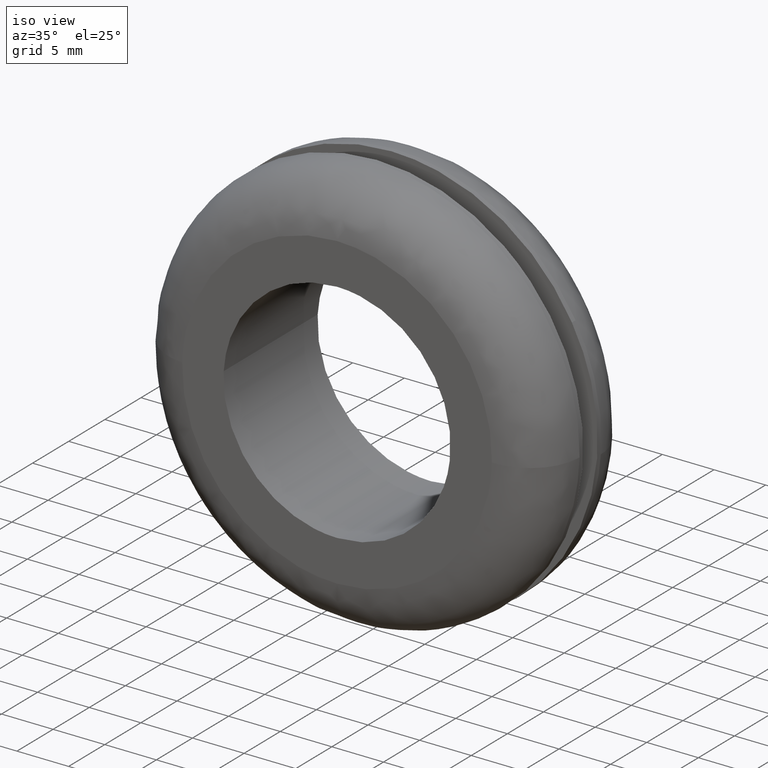
[diagram: clean part render]
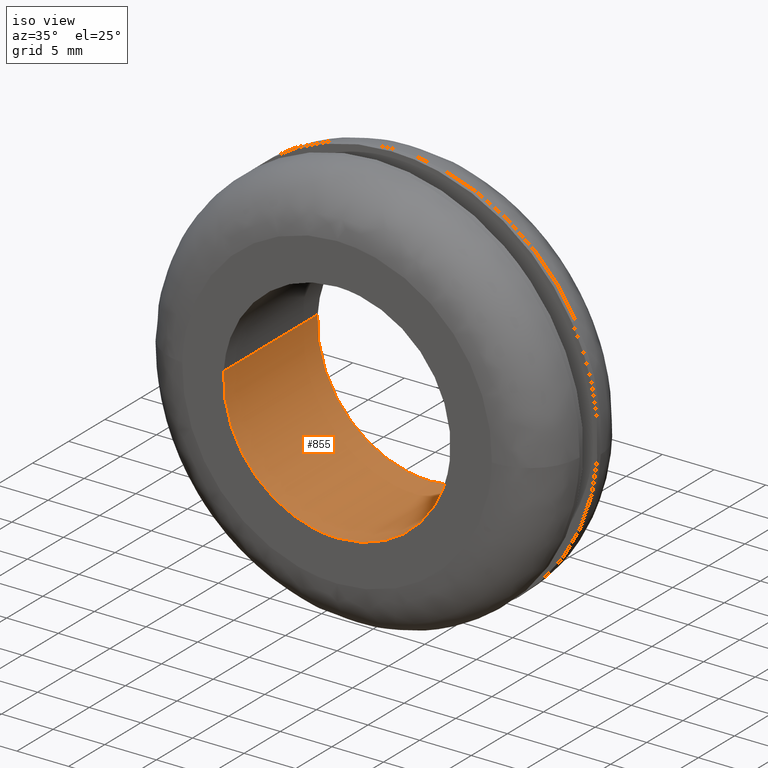
[diagram: same view with one face highlighted and labeled with its STEP entity id]
A machine part, iso view. The second image highlights one B-rep face of the part: STEP entity #855.
In plain terms, the highlighted face is a freeform B-spline surface patch.
Its self-contained STEP definition (entity closure, byte-faithful):
#688=CARTESIAN_POINT('',(10.923106698756831,13.000000000000041,-1.298360522856434));
#689=VERTEX_POINT('',#688);
#707=CARTESIAN_POINT('',(10.923106675754809,-2.060889E-015,-1.298360716374869));
#708=VERTEX_POINT('',#707);
#709=CARTESIAN_POINT('',(10.923106698756831,13.000000000000041,-1.298360522856434));
#710=CARTESIAN_POINT('',(10.923106675754809,-2.060889E-015,-1.298360716374869));
#711=QUASI_UNIFORM_CURVE('',1,(#709,#710),.UNSPECIFIED.,.F.,.U.);
#712=EDGE_CURVE('',#689,#708,#711,.T.);
#731=CARTESIAN_POINT('',(-10.979483781875210,-2.092768E-015,0.671517597141975));
#732=VERTEX_POINT('',#731);
#746=CARTESIAN_POINT('',(-10.979483794064830,13.000000000000050,0.671517397833643));
#747=VERTEX_POINT('',#746);
#748=CARTESIAN_POINT('',(-10.979483794064830,13.000000000000050,0.671517397833643));
#749=CARTESIAN_POINT('',(-10.979483781875210,-2.092768E-015,0.671517597141975));
#750=QUASI_UNIFORM_CURVE('',1,(#748,#749),.UNSPECIFIED.,.F.,.U.);
#751=EDGE_CURVE('',#747,#732,#750,.T.);
#769=CARTESIAN_POINT('',(-10.970229909106381,13.324999999999999,0.822817079905325));
#770=CARTESIAN_POINT('',(-10.974843105790240,13.324999999999999,0.747391980841490));
#771=CARTESIAN_POINT('',(-11.651016717523961,13.325000000000001,-10.307948847757109));
#772=CARTESIAN_POINT('',(-0.671533934883427,13.324999999999999,-10.979482782640540));
#773=CARTESIAN_POINT('',(9.696978399234512,13.325000000000003,-11.613648164057802));
#774=CARTESIAN_POINT('',(10.932285275241552,13.325000000000001,-1.221142130323878));
#775=CARTESIAN_POINT('',(10.941416419918962,13.325000000000008,-1.144322776365762));
#776=CARTESIAN_POINT('',(-10.970229909106381,-0.333125000000002,0.822817079905325));
#777=CARTESIAN_POINT('',(-10.974843105790240,-0.333125000000002,0.747391980841490));
#778=CARTESIAN_POINT('',(-11.651016717523961,-0.333125000000003,-10.307948847757109));
#779=CARTESIAN_POINT('',(-0.671533934883427,-0.333125000000003,-10.979482782640540));
#780=CARTESIAN_POINT('',(9.696978399234512,-0.333125000000003,-11.613648164057802));
#781=CARTESIAN_POINT('',(10.932285275241552,-0.333125000000003,-1.221142130323878));
#782=CARTESIAN_POINT('',(10.941416419918962,-0.333125000000003,-1.144322776365762));
#790=(BOUNDED_SURFACE()B_SPLINE_SURFACE(2,1,((#769,#776),(#770,#777),(#771,#778),(#772,#779),(#773,#780),(#774,#781),(#775,#782)),.UNSPECIFIED.,.F.,.F.,.U.)B_SPLINE_SURFACE_WITH_KNOTS((3,1,2,1,3),(2,2),(0.0,0.178589704203703,18.403986448619889,35.900367323259417,36.078994723890460),(0.0,13.658125000000011),.UNSPECIFIED.)GEOMETRIC_REPRESENTATION_ITEM()RATIONAL_B_SPLINE_SURFACE(((1.005740090495116,1.005740090495116),(1.002870045247558,1.002870045247558),(0.707106781186548,0.707106781186548),(1.0,1.0),(0.718822509939086,0.718822509939086),(0.980146799763049,0.980146799763049),(0.982787798730971,0.982787798730971)))REPRESENTATION_ITEM('')SURFACE());
#791=CARTESIAN_POINT('',(0.0,13.0,-11.0));
#792=VERTEX_POINT('',#791);
#793=CARTESIAN_POINT('',(0.0,13.0,-11.0));
#794=CARTESIAN_POINT('',(9.769934249620954,13.000000000000002,-11.0));
#795=CARTESIAN_POINT('',(10.923106698756833,13.000000000000034,-1.298360522856434));
#803=(BOUNDED_CURVE()B_SPLINE_CURVE(2,(#793,#794,#795),.UNSPECIFIED.,.F.,.U.)B_SPLINE_CURVE_WITH_KNOTS((3,3),(0.0,0.229562721972163),.UNSPECIFIED.)CURVE()GEOMETRIC_REPRESENTATION_ITEM()RATIONAL_B_SPLINE_CURVE((1.0,0.731050541767982,0.956027241173408))REPRESENTATION_ITEM(''));
#804=EDGE_CURVE('',#792,#689,#803,.T.);
#805=ORIENTED_EDGE('',*,*,#804,.F.);
#806=CARTESIAN_POINT('',(-10.979483794064834,13.000000000000043,0.671517397833643));
#807=CARTESIAN_POINT('',(-10.999999999999996,12.999999999999996,0.336072104576399));
#808=CARTESIAN_POINT('',(-11.0,13.0,-3.673819E-016));
#809=CARTESIAN_POINT('',(-11.0,13.000000000000002,-11.0));
#810=CARTESIAN_POINT('',(0.0,13.0,-11.0));
#818=(BOUNDED_CURVE()B_SPLINE_CURVE(2,(#806,#807,#808,#809,#810),.UNSPECIFIED.,.F.,.U.)B_SPLINE_CURVE_WITH_KNOTS((3,2,3),(0.739333222128109,0.750000000000000,1.0),.UNSPECIFIED.)CURVE()GEOMETRIC_REPRESENTATION_ITEM()RATIONAL_B_SPLINE_CURVE((0.976072598659305,0.987503092378935,1.0,0.707106781186548,1.0))REPRESENTATION_ITEM(''));
#819=EDGE_CURVE('',#747,#792,#818,.T.);
#820=ORIENTED_EDGE('',*,*,#819,.F.);
#821=ORIENTED_EDGE('',*,*,#751,.T.);
#822=CARTESIAN_POINT('',(0.0,-2.020600E-015,-11.0));
#823=VERTEX_POINT('',#822);
#824=CARTESIAN_POINT('',(-10.979483781875205,-2.092768E-015,0.671517597141975));
#825=CARTESIAN_POINT('',(-11.0,-2.020600E-015,0.336072204509964));
#826=CARTESIAN_POINT('',(-11.0,-2.020600E-015,-3.673819E-016));
#827=CARTESIAN_POINT('',(-11.0,-2.020600E-015,-11.0));
#828=CARTESIAN_POINT('',(0.0,-2.020600E-015,-11.0));
#836=(BOUNDED_CURVE()B_SPLINE_CURVE(2,(#824,#825,#826,#827,#828),.UNSPECIFIED.,.F.,.U.)B_SPLINE_CURVE_WITH_KNOTS((3,2,3),(0.739333218995901,0.750000000000000,1.0),.UNSPECIFIED.)CURVE()GEOMETRIC_REPRESENTATION_ITEM()RATIONAL_B_SPLINE_CURVE((0.976072591946372,0.987503088709325,1.0,0.707106781186548,1.0))REPRESENTATION_ITEM(''));
#837=EDGE_CURVE('',#732,#823,#836,.T.);
#838=ORIENTED_EDGE('',*,*,#837,.T.);
#839=CARTESIAN_POINT('',(0.0,-2.020600E-015,-11.0));
#840=CARTESIAN_POINT('',(9.769934075314190,-2.020600E-015,-11.0));
#841=CARTESIAN_POINT('',(10.923106675754811,-2.060889E-015,-1.298360716374870));
#849=(BOUNDED_CURVE()B_SPLINE_CURVE(2,(#839,#840,#841),.UNSPECIFIED.,.F.,.U.)B_SPLINE_CURVE_WITH_KNOTS((3,3),(0.0,0.229562718978028),.UNSPECIFIED.)CURVE()GEOMETRIC_REPRESENTATION_ITEM()RATIONAL_B_SPLINE_CURVE((1.0,0.731050545275830,0.956027235304767))REPRESENTATION_ITEM(''));
#850=EDGE_CURVE('',#823,#708,#849,.T.);
#851=ORIENTED_EDGE('',*,*,#850,.T.);
#852=ORIENTED_EDGE('',*,*,#712,.F.);
#853=EDGE_LOOP('',(#805,#820,#821,#838,#851,#852));
#854=FACE_OUTER_BOUND('',#853,.T.);
#855=ADVANCED_FACE('',(#854),#790,.F.);